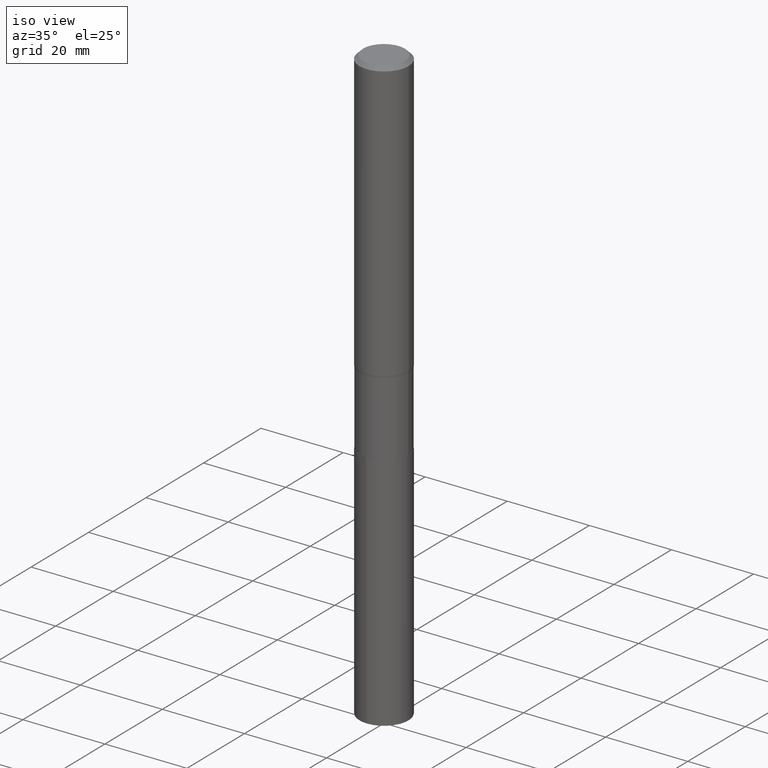
[diagram: clean part render]
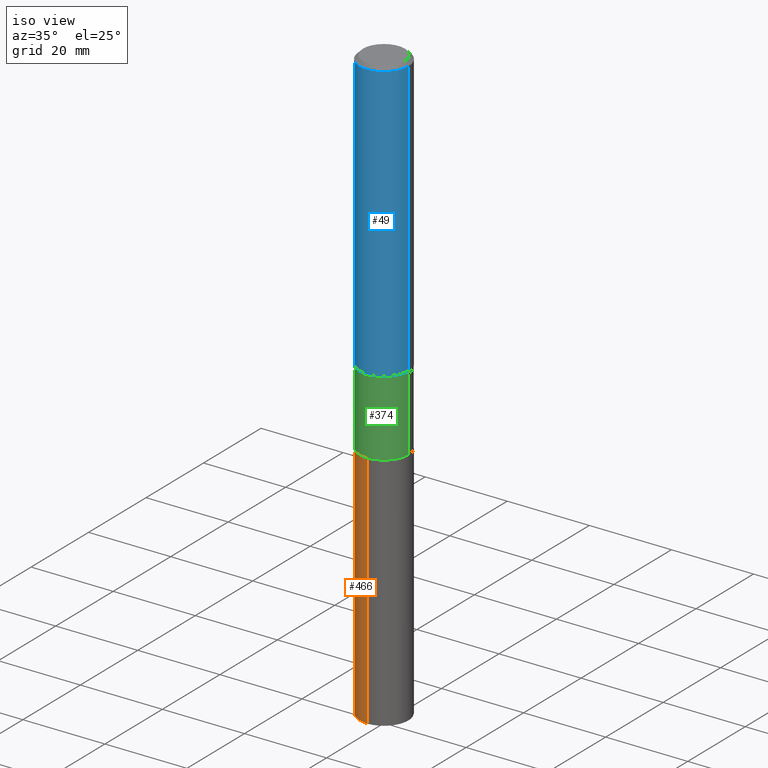
[diagram: same view with three faces highlighted in distinct colors, each labeled with its STEP entity id]
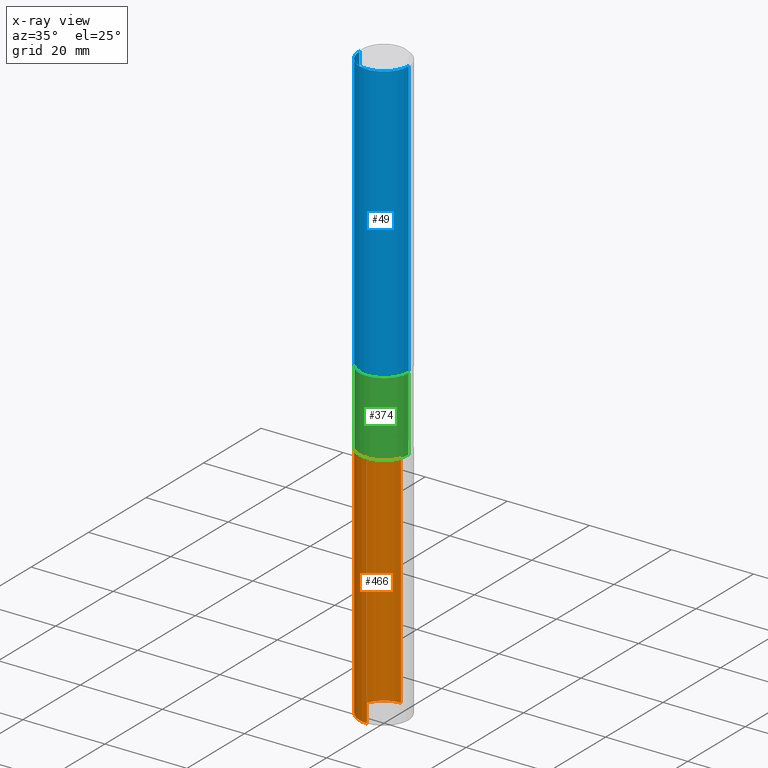
[diagram: x-ray of the same camera — body ghosted, the three highlighted faces saturated]
A machine part, iso view with three faces highlighted in distinct colors.
The next image is the same camera in x-ray (body ghosted, the three faces saturated) — at least one of them is partly hidden behind the body in this view.
Their STEP definitions:

[orange] entity #466 — the highlighted cylindrical surface (edge-blend (fillet) strip) has radius 5.9538 mm, axis along (-0, 0, 1).
#14 = CARTESIAN_POINT ( 'NONE',  ( 1.665512172621757844E-15, 0.2343999999999881179, -3.405700000000000838 ) ) ;
#18 = CIRCLE ( 'NONE', #398, 0.2343999999999999972 ) ;
#25 = ORIENTED_EDGE ( 'NONE', *, *, #316, .F. ) ;
#30 = EDGE_CURVE ( 'NONE', #287, #300, #18, .T. ) ;
#32 = CARTESIAN_POINT ( 'NONE',  ( 1.665512172621786046E-15, 0.2343999999999800687, -5.708700000000002106 ) ) ;
#34 = ORIENTED_EDGE ( 'NONE', *, *, #277, .T. ) ;
#60 = CIRCLE ( 'NONE', #320, 0.2343999999999999972 ) ;
#100 = LINE ( 'NONE', #14, #270 ) ;
#130 = VERTEX_POINT ( 'NONE', #32 ) ;
#135 = LINE ( 'NONE', #338, #371 ) ;
#141 = AXIS2_PLACEMENT_3D ( 'NONE', #274, #147, #175 ) ;
#147 = DIRECTION ( 'NONE',  ( -2.445317733907196105E-29, 3.491697682943656499E-15, 1.000000000000000000 ) ) ;
#162 = DIRECTION ( 'NONE',  ( -2.445317733907196105E-29, 3.491697682943656499E-15, 1.000000000000000000 ) ) ;
#165 = DIRECTION ( 'NONE',  ( -2.445317733907196105E-29, 3.491697682943656499E-15, 1.000000000000000000 ) ) ;
#175 = DIRECTION ( 'NONE',  ( -6.982962677686265922E-15, -1.000000000000000000, 2.330928322239132474E-15 ) ) ;
#217 = VERTEX_POINT ( 'NONE', #293 ) ;
#228 = DIRECTION ( 'NONE',  ( -2.445317733907196105E-29, 3.491697682943656499E-15, 1.000000000000000000 ) ) ;
#233 = CARTESIAN_POINT ( 'NONE',  ( -1.636806451649577489E-15, -0.2344000000000118766, -3.405699999999999505 ) ) ;
#259 = DIRECTION ( 'NONE',  ( -6.982962677686265922E-15, -1.000000000000000000, 4.661856644478264948E-15 ) ) ;
#265 = ORIENTED_EDGE ( 'NONE', *, *, #30, .F. ) ;
#270 = VECTOR ( 'NONE', #162, 39.37007874015748143 ) ;
#274 = CARTESIAN_POINT ( 'NONE',  ( 8.328533113224721021E-29, -1.189093799569810036E-14, -3.405700000000000394 ) ) ;
#277 = EDGE_CURVE ( 'NONE', #217, #300, #135, .T. ) ;
#287 = VERTEX_POINT ( 'NONE', #339 ) ;
#293 = CARTESIAN_POINT ( 'NONE',  ( -1.636806451649521085E-15, -0.2344000000000199535, -5.708700000000000330 ) ) ;
#296 = CARTESIAN_POINT ( 'NONE',  ( 8.328533113224721021E-29, -1.189093799569810036E-14, -3.405700000000000394 ) ) ;
#300 = VERTEX_POINT ( 'NONE', #233 ) ;
#307 = FACE_OUTER_BOUND ( 'NONE', #401, .T. ) ;
#316 = EDGE_CURVE ( 'NONE', #130, #287, #100, .T. ) ;
#320 = AXIS2_PLACEMENT_3D ( 'NONE', #413, #165, #259 ) ;
#338 = CARTESIAN_POINT ( 'NONE',  ( -1.636806451649577489E-15, -0.2344000000000118766, -3.405699999999999505 ) ) ;
#339 = CARTESIAN_POINT ( 'NONE',  ( 1.665512172621814247E-15, 0.2343999999999880901, -3.405700000000000838 ) ) ;
#340 = EDGE_CURVE ( 'NONE', #130, #217, #60, .T. ) ;
#371 = VECTOR ( 'NONE', #453, 39.37007874015748143 ) ;
#398 = AXIS2_PLACEMENT_3D ( 'NONE', #296, #228, #410 ) ;
#401 = EDGE_LOOP ( 'NONE', ( #25, #450, #34, #265 ) ) ;
#410 = DIRECTION ( 'NONE',  ( -6.982962677686265922E-15, -1.000000000000000000, 2.330928322239132474E-15 ) ) ;
#413 = CARTESIAN_POINT ( 'NONE',  ( 1.396009985441299727E-28, -1.993231775951734575E-14, -5.708700000000001218 ) ) ;
#429 = CYLINDRICAL_SURFACE ( 'NONE', #141, 0.2343999999999999972 ) ;
#450 = ORIENTED_EDGE ( 'NONE', *, *, #340, .T. ) ;
#453 = DIRECTION ( 'NONE',  ( -2.445317733907196105E-29, 3.491697682943656499E-15, 1.000000000000000000 ) ) ;
#466 = ADVANCED_FACE ( 'NONE', ( #307 ), #429, .T. ) ;

[blue] entity #49 — the highlighted cylindrical surface (edge-blend (fillet) strip) has radius 5.9995 mm, axis along (-0, 0, 1).
#8 = DIRECTION ( 'NONE',  ( -2.445468806185136597E-29, 3.491481338843145583E-15, 1.000000000000000000 ) ) ;
#11 = EDGE_CURVE ( 'NONE', #312, #359, #420, .T. ) ;
#13 = EDGE_LOOP ( 'NONE', ( #329, #220, #61, #152 ) ) ;
#15 = CARTESIAN_POINT ( 'NONE',  ( 0.000000000000000000, 0.000000000000000000, 0.000000000000000000 ) ) ;
#21 = CARTESIAN_POINT ( 'NONE',  ( -0.2362000000000003264, -7.673718693175901763E-15, -2.678525166667487856 ) ) ;
#28 = EDGE_CURVE ( 'NONE', #183, #276, #245, .T. ) ;
#39 = CARTESIAN_POINT ( 'NONE',  ( 0.2362000000000002153, -1.649375784469497708E-15, 1.151752954443001069E-29 ) ) ;
#48 = DIRECTION ( 'NONE',  ( -2.445468806185136597E-29, 3.491481338843145583E-15, 1.000000000000000000 ) ) ;
#49 = ADVANCED_FACE ( 'NONE', ( #89 ), #334, .T. ) ;
#61 = ORIENTED_EDGE ( 'NONE', *, *, #242, .T. ) ;
#65 = AXIS2_PLACEMENT_3D ( 'NONE', #15, #365, #191 ) ;
#79 = EDGE_CURVE ( 'NONE', #312, #183, #234, .T. ) ;
#89 = FACE_OUTER_BOUND ( 'NONE', #13, .T. ) ;
#105 = AXIS2_PLACEMENT_3D ( 'NONE', #408, #8, #294 ) ;
#112 = LINE ( 'NONE', #39, #358 ) ;
#126 = DIRECTION ( 'NONE',  ( 1.000000000000000000, -6.982962677686267499E-15, 0.000000000000000000 ) ) ;
#152 = ORIENTED_EDGE ( 'NONE', *, *, #28, .F. ) ;
#170 = DIRECTION ( 'NONE',  ( -2.445468806185136877E-29, 3.491481338843145188E-15, 1.000000000000000000 ) ) ;
#183 = VERTEX_POINT ( 'NONE', #407 ) ;
#184 = VECTOR ( 'NONE', #170, 39.37007874015748143 ) ;
#190 = DIRECTION ( 'NONE',  ( -2.445468806185136877E-29, 3.491481338843145188E-15, 1.000000000000000000 ) ) ;
#191 = DIRECTION ( 'NONE',  ( 1.000000000000000000, -6.982962677686266711E-15, 4.876176775795935793E-29 ) ) ;
#200 = CARTESIAN_POINT ( 'NONE',  ( 0.2362000000000000210, -1.773078968304710106E-15, -0.03543000000000025296 ) ) ;
#220 = ORIENTED_EDGE ( 'NONE', *, *, #11, .T. ) ;
#224 = CARTESIAN_POINT ( 'NONE',  ( 8.664295980314000494E-31, -1.237031838352135311E-16, -0.03543000000000025296 ) ) ;
#234 = LINE ( 'NONE', #419, #184 ) ;
#242 = EDGE_CURVE ( 'NONE', #359, #276, #112, .T. ) ;
#245 = CIRCLE ( 'NONE', #306, 0.2362000000000000210 ) ;
#276 = VERTEX_POINT ( 'NONE', #200 ) ;
#294 = DIRECTION ( 'NONE',  ( 1.000000000000000000, -6.982962677686263555E-15, 0.000000000000000000 ) ) ;
#306 = AXIS2_PLACEMENT_3D ( 'NONE', #224, #48, #126 ) ;
#312 = VERTEX_POINT ( 'NONE', #21 ) ;
#329 = ORIENTED_EDGE ( 'NONE', *, *, #79, .F. ) ;
#334 = CYLINDRICAL_SURFACE ( 'NONE', #65, 0.2362000000000002153 ) ;
#358 = VECTOR ( 'NONE', #190, 39.37007874015748143 ) ;
#359 = VERTEX_POINT ( 'NONE', #409 ) ;
#365 = DIRECTION ( 'NONE',  ( -2.445468806185136597E-29, 3.491481338843145583E-15, 1.000000000000000000 ) ) ;
#407 = CARTESIAN_POINT ( 'NONE',  ( -0.2362000000000000210, -3.059559967572877305E-15, -0.03543000000000025296 ) ) ;
#408 = CARTESIAN_POINT ( 'NONE',  ( 6.550249741667184753E-29, -9.352020635041259735E-15, -2.678525166667487856 ) ) ;
#409 = CARTESIAN_POINT ( 'NONE',  ( 0.2362000000000003264, -1.100139641951075784E-14, -2.678525166667487856 ) ) ;
#419 = CARTESIAN_POINT ( 'NONE',  ( -0.2362000000000002153, 1.678301941865358169E-15, -1.161852468318209878E-29 ) ) ;
#420 = CIRCLE ( 'NONE', #105, 0.2362000000000003264 ) ;

[green] entity #374 — the highlighted cylindrical surface (edge-blend (fillet) strip) has radius 5.9538 mm, axis along (-0, 0, 1).
#5 = VERTEX_POINT ( 'NONE', #291 ) ;
#7 = CARTESIAN_POINT ( 'NONE',  ( 0.2344000000000000528, -1.352599870667833977E-14, -3.405200000000000227 ) ) ;
#47 = DIRECTION ( 'NONE',  ( -2.445468806185136877E-29, 3.491481338843145188E-15, 1.000000000000000000 ) ) ;
#50 = CARTESIAN_POINT ( 'NONE',  ( -0.2343999999999999972, 1.665512172621674816E-15, -1.152998385155749824E-29 ) ) ;
#59 = EDGE_LOOP ( 'NONE', ( #104, #161, #82, #258 ) ) ;
#71 = EDGE_CURVE ( 'NONE', #186, #5, #86, .T. ) ;
#76 = CIRCLE ( 'NONE', #212, 0.2344000000000000528 ) ;
#82 = ORIENTED_EDGE ( 'NONE', *, *, #313, .T. ) ;
#86 = CIRCLE ( 'NONE', #463, 0.2343999999999999417 ) ;
#93 = DIRECTION ( 'NONE',  ( 1.000000000000000000, -6.982962677686263555E-15, 0.000000000000000000 ) ) ;
#95 = LINE ( 'NONE', #50, #352 ) ;
#104 = ORIENTED_EDGE ( 'NONE', *, *, #362, .F. ) ;
#109 = EDGE_CURVE ( 'NONE', #128, #260, #76, .T. ) ;
#123 = CARTESIAN_POINT ( 'NONE',  ( -0.2344000000000000528, -8.984553355251572291E-15, -3.405200000000000227 ) ) ;
#128 = VERTEX_POINT ( 'NONE', #123 ) ;
#136 = DIRECTION ( 'NONE',  ( -2.445468806185136597E-29, 3.491481338843145583E-15, 1.000000000000000000 ) ) ;
#161 = ORIENTED_EDGE ( 'NONE', *, *, #109, .T. ) ;
#186 = VERTEX_POINT ( 'NONE', #399 ) ;
#196 = LINE ( 'NONE', #236, #283 ) ;
#204 = DIRECTION ( 'NONE',  ( 1.000000000000000000, -6.982962677686266711E-15, 4.876176775795935793E-29 ) ) ;
#212 = AXIS2_PLACEMENT_3D ( 'NONE', #343, #346, #311 ) ;
#236 = CARTESIAN_POINT ( 'NONE',  ( 0.2343999999999999972, -1.636806451649660911E-15, 1.142975836246567295E-29 ) ) ;
#258 = ORIENTED_EDGE ( 'NONE', *, *, #71, .F. ) ;
#260 = VERTEX_POINT ( 'NONE', #7 ) ;
#278 = AXIS2_PLACEMENT_3D ( 'NONE', #449, #369, #204 ) ;
#283 = VECTOR ( 'NONE', #47, 39.37007874015748143 ) ;
#291 = CARTESIAN_POINT ( 'NONE',  ( 0.2343999999999999417, -1.104774525236747390E-14, -2.695399999999999796 ) ) ;
#299 = DIRECTION ( 'NONE',  ( -2.445468806185136877E-29, 3.491481338843145188E-15, 1.000000000000000000 ) ) ;
#311 = DIRECTION ( 'NONE',  ( 1.000000000000000000, -6.982962677686268288E-15, 0.000000000000000000 ) ) ;
#313 = EDGE_CURVE ( 'NONE', #260, #5, #196, .T. ) ;
#343 = CARTESIAN_POINT ( 'NONE',  ( 8.327310378821627098E-29, -1.188919225502867807E-14, -3.405200000000000227 ) ) ;
#346 = DIRECTION ( 'NONE',  ( -2.445468806185136597E-29, 3.491481338843145583E-15, 1.000000000000000000 ) ) ;
#352 = VECTOR ( 'NONE', #299, 39.37007874015748143 ) ;
#362 = EDGE_CURVE ( 'NONE', #128, #186, #95, .T. ) ;
#369 = DIRECTION ( 'NONE',  ( -2.445468806185136597E-29, 3.491481338843145583E-15, 1.000000000000000000 ) ) ;
#374 = ADVANCED_FACE ( 'NONE', ( #423 ), #415, .T. ) ;
#384 = CARTESIAN_POINT ( 'NONE',  ( 6.591516620191417280E-29, -9.410938800717813781E-15, -2.695399999999999796 ) ) ;
#399 = CARTESIAN_POINT ( 'NONE',  ( -0.2343999999999999417, -8.984553355251572291E-15, -2.695399999999999796 ) ) ;
#415 = CYLINDRICAL_SURFACE ( 'NONE', #278, 0.2343999999999999972 ) ;
#423 = FACE_OUTER_BOUND ( 'NONE', #59, .T. ) ;
#449 = CARTESIAN_POINT ( 'NONE',  ( 0.000000000000000000, 0.000000000000000000, 0.000000000000000000 ) ) ;
#463 = AXIS2_PLACEMENT_3D ( 'NONE', #384, #136, #93 ) ;